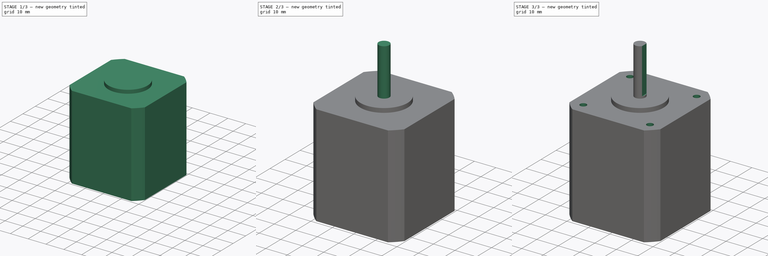
[diagram: build sequence overview — one tinted view per stage of 3, left to right]
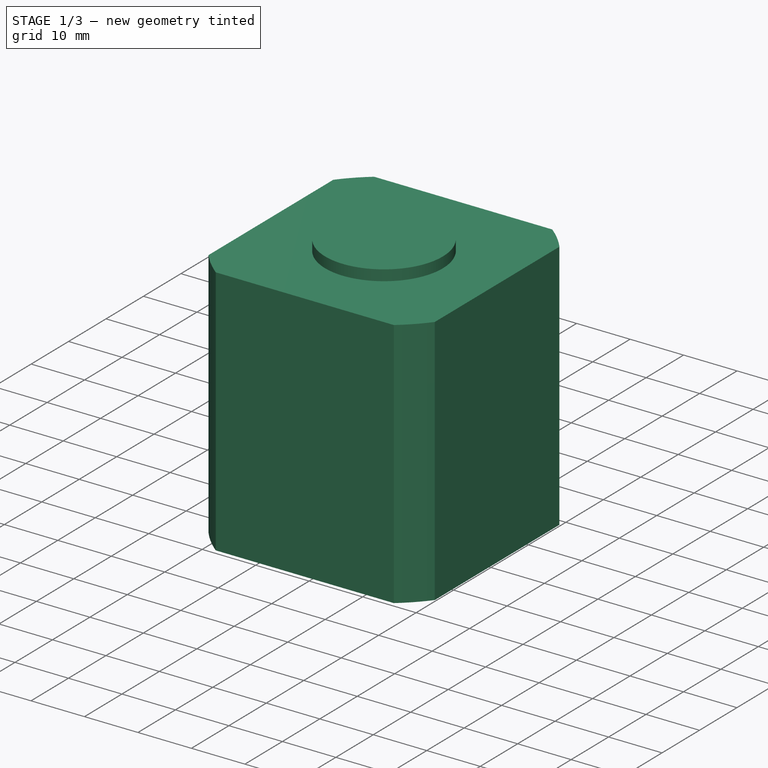
[diagram: stage 1 of 3 — iso view after this stage's code; geometry added in this stage tinted green]
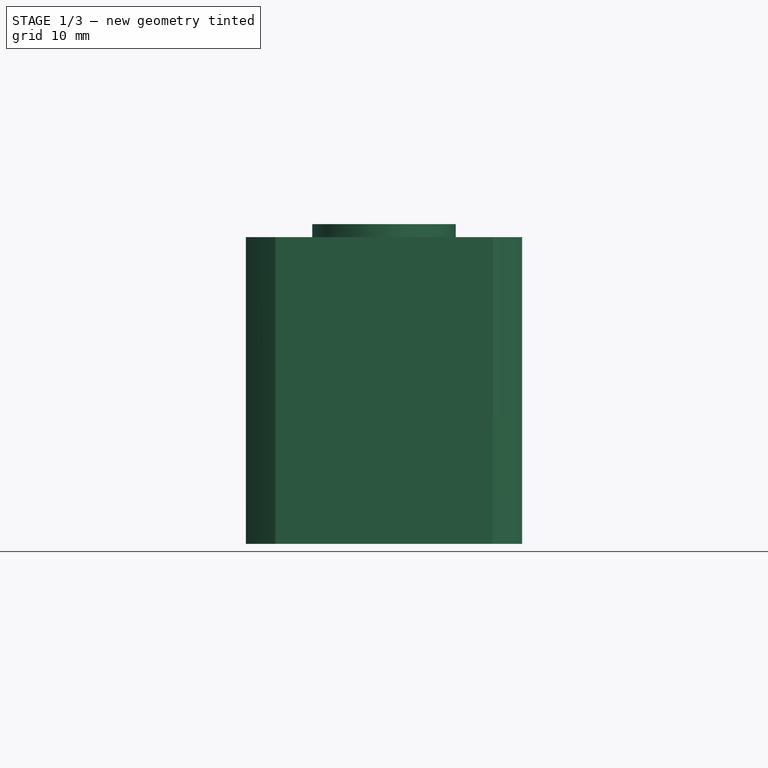
[diagram: stage 1 of 3 — front view after this stage's code; geometry added in this stage tinted green]
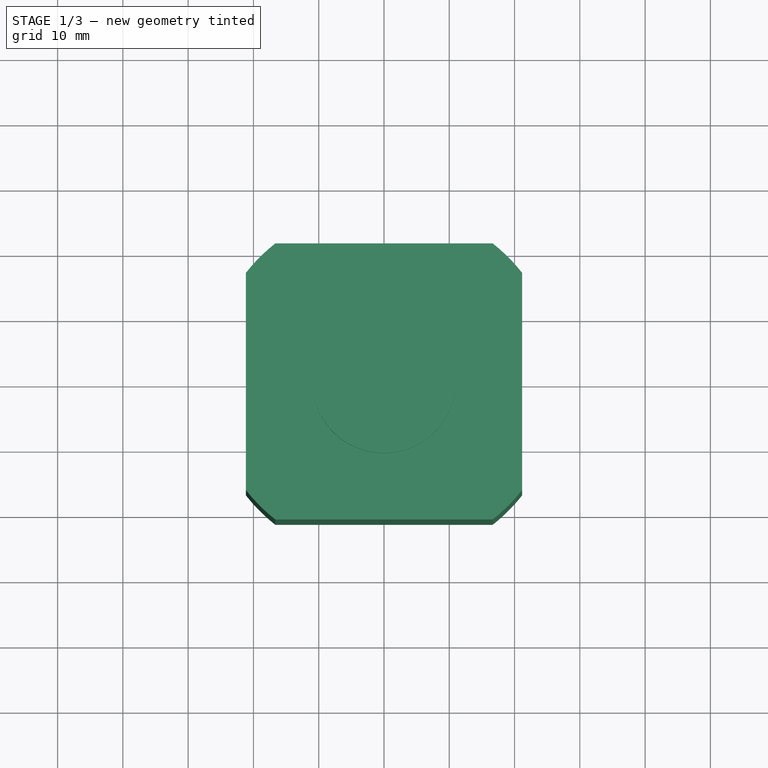
[diagram: stage 1 of 3 — top view after this stage's code; geometry added in this stage tinted green]
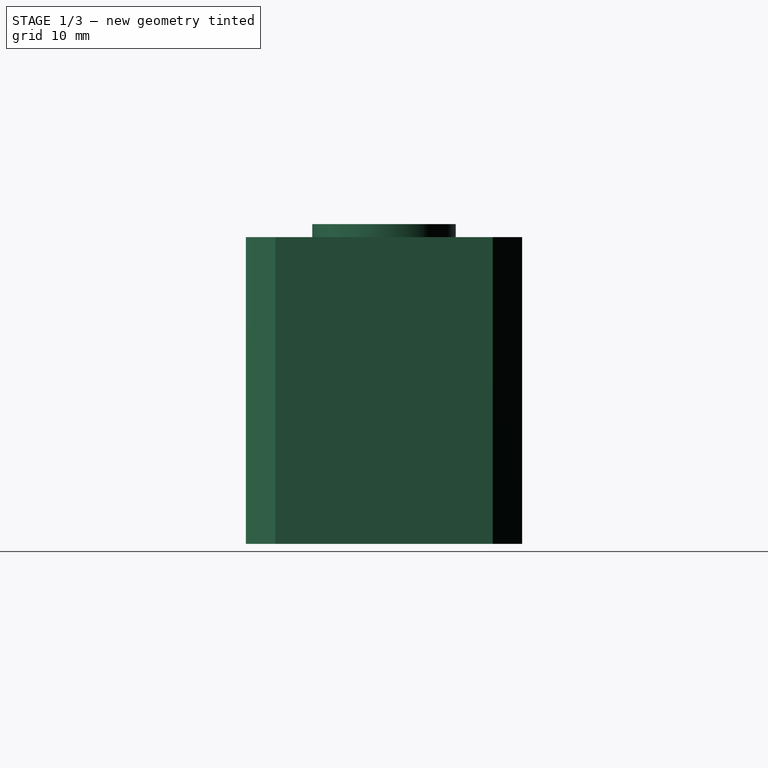
[diagram: stage 1 of 3 — right view after this stage's code; geometry added in this stage tinted green]
FCSTD DOCUMENT
Label: NEMA-17_StepperMotor
objects: Sketcher::SketchObject×5, PartDesign::Pad×3, PartDesign::Pocket×2
note: 13 computed .brp shape members not serialized (recipe doc carries the construction recipe); baked Part::Feature solids carry a one-line shape summary decoded from their .brp

FEATURE [Sketcher::SketchObject] Sketch
  sketch-geometry (8):
    g0: LineSegment StartX=-16.65 StartY=-21.15 StartZ=0 EndX=16.65 EndY=-21.15 EndZ=0
    g1: LineSegment StartX=21.15 StartY=-16.65 StartZ=0 EndX=21.15 EndY=16.65 EndZ=0
    g2: LineSegment StartX=16.65 StartY=21.15 StartZ=0 EndX=-16.65 EndY=21.15 EndZ=0
    g3: LineSegment StartX=-21.15 StartY=16.65 StartZ=0 EndX=-21.15 EndY=-16.65 EndZ=0
    g4: ArcOfCircle CenterX=0 CenterY=0 CenterZ=0 NormalX=0 NormalY=0 NormalZ=1 Radius=26.9174 StartAngle=2.2377 EndAngle=2.47468
    g5: ArcOfCircle CenterX=0 CenterY=0 CenterZ=0 NormalX=0 NormalY=0 NormalZ=1 Radius=26.9174 StartAngle=3.8085 EndAngle=4.04548
    g6: ArcOfCircle CenterX=0 CenterY=0 CenterZ=0 NormalX=0 NormalY=0 NormalZ=1 Radius=26.9174 StartAngle=5.3793 EndAngle=5.61628
    g7: ArcOfCircle CenterX=0 CenterY=0 CenterZ=0 NormalX=0 NormalY=0 NormalZ=1 Radius=26.9174 StartAngle=0.666908 EndAngle=0.903888
  constraints (29):
    c: Horizontal(g0)
    c: Horizontal(g2)
    c: Vertical(g1)
    c: Vertical(g3)
    c: PointOnObject(g0,g4)
    c: PointOnObject(g0,g4)
    c: PointOnObject(g1,g4)
    c: PointOnObject(g1,g4)
    c: Coincident(g4,g2)
    c: Coincident(g7,g2)
    c: Equal(g4,g5)
    c: Coincident(g4,g3)
    c: Coincident(g5,g3)
    c: Coincident(g4,g5)
    c: Equal(g5,g6)
    c: PointOnObject(g5,g0)
    c: PointOnObject(g6,g0)
    c: Coincident(g5,g6)
    c: Equal(g6,g7)
    c: PointOnObject(g6,g1)
    c: PointOnObject(g7,g1)
    c: Coincident(g6,g7)
    c: Equal(g3,g2)
    c: Equal(g2,g1)
    c: Equal(g1,g0)
    c: DistanceX(g3,g1) = 42.3
    c: DistanceX(g2) = -33.3
    c: DistanceY(g2) = 21.15
    c: DistanceX(g1) = 21.15
FEATURE [PartDesign::Pad] Pad
  Length = 47
  MirroredExtent = false
  Sketch = -> Sketch
FEATURE [Sketcher::SketchObject] Sketch001
  Placement = pos=(0,0,47) rot=(0,0,1;0rad)
  Support = -> Pad [Face10]
  sketch-geometry (1):
    g0: Circle CenterX=0 CenterY=0 CenterZ=0 NormalX=0 NormalY=0 NormalZ=1 Radius=11
  constraints (3):
    c: DistanceX(g0) = 0
    c: DistanceY(g0) = 0
    c: Radius(g0) = 11
FEATURE [PartDesign::Pad] Pad001
  Length = 2
  MirroredExtent = false
  Sketch = -> Sketch001
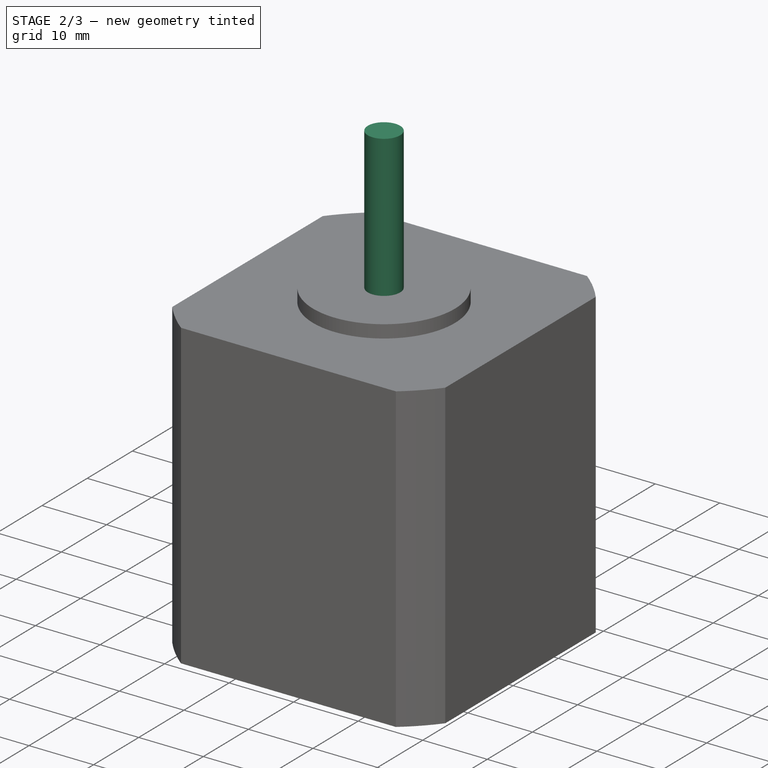
[diagram: stage 2 of 3 — iso view after this stage's code; geometry added in this stage tinted green]
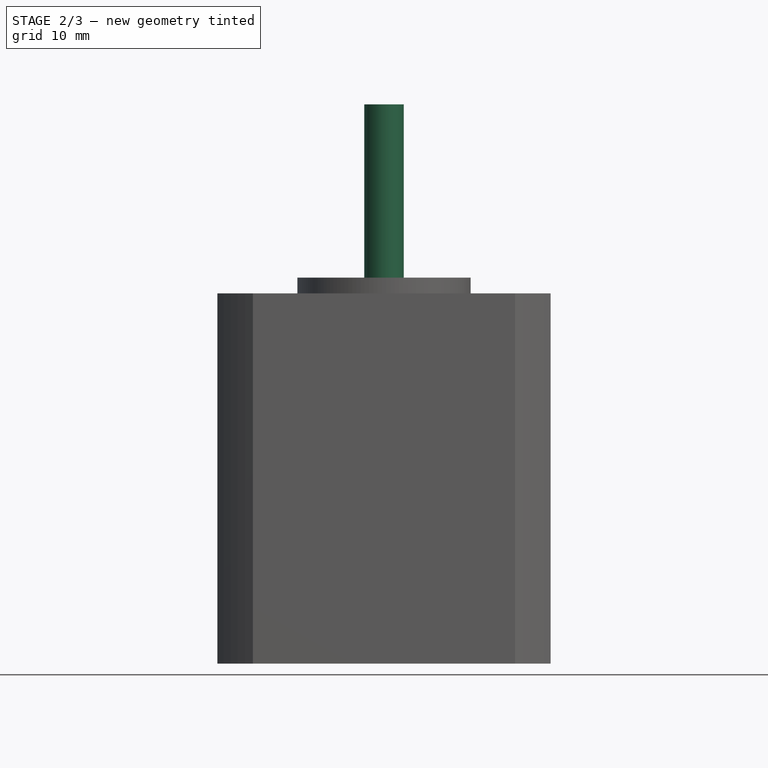
[diagram: stage 2 of 3 — front view after this stage's code; geometry added in this stage tinted green]
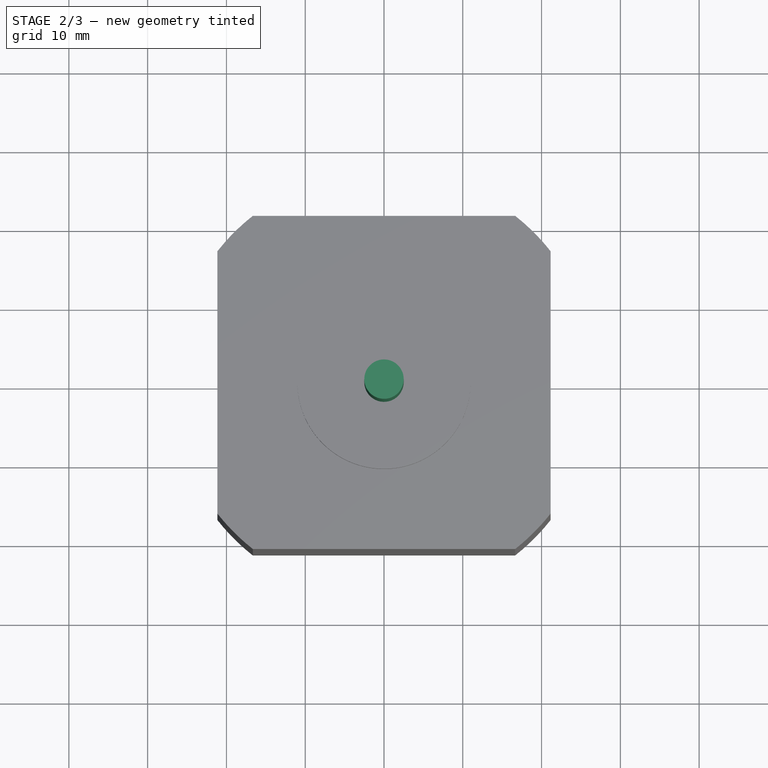
[diagram: stage 2 of 3 — top view after this stage's code; geometry added in this stage tinted green]
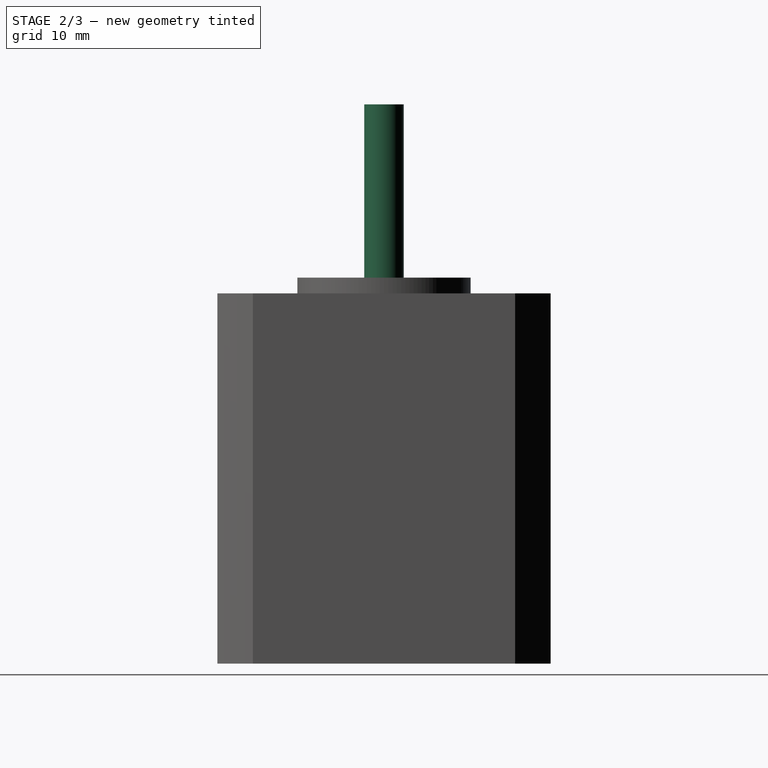
[diagram: stage 2 of 3 — right view after this stage's code; geometry added in this stage tinted green]
FEATURE [Sketcher::SketchObject] Sketch002
  Placement = pos=(0,0,49) rot=(0,0,1;0rad)
  Support = -> Pad001 [Face12]
  sketch-geometry (1):
    g0: Circle CenterX=0 CenterY=0 CenterZ=0 NormalX=0 NormalY=0 NormalZ=1 Radius=2.5
  constraints (3):
    c: DistanceX(g0) = 0
    c: DistanceY(g0) = 0
    c: Radius(g0) = 2.5
FEATURE [PartDesign::Pad] Pad002
  Length = 22
  MirroredExtent = false
  Sketch = -> Sketch002
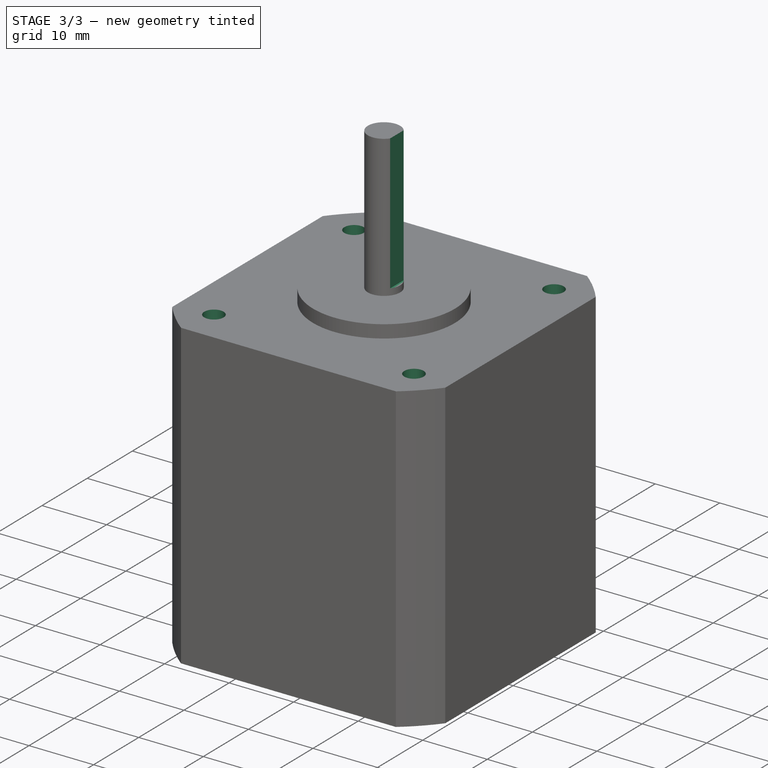
[diagram: stage 3 of 3 — iso view after this stage's code; geometry added in this stage tinted green]
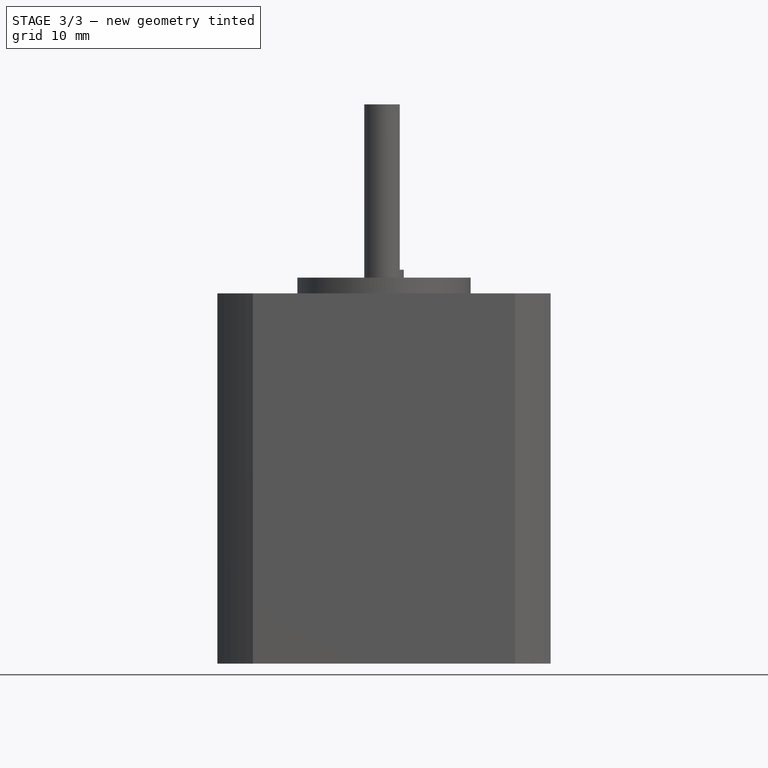
[diagram: stage 3 of 3 — front view after this stage's code; geometry added in this stage tinted green]
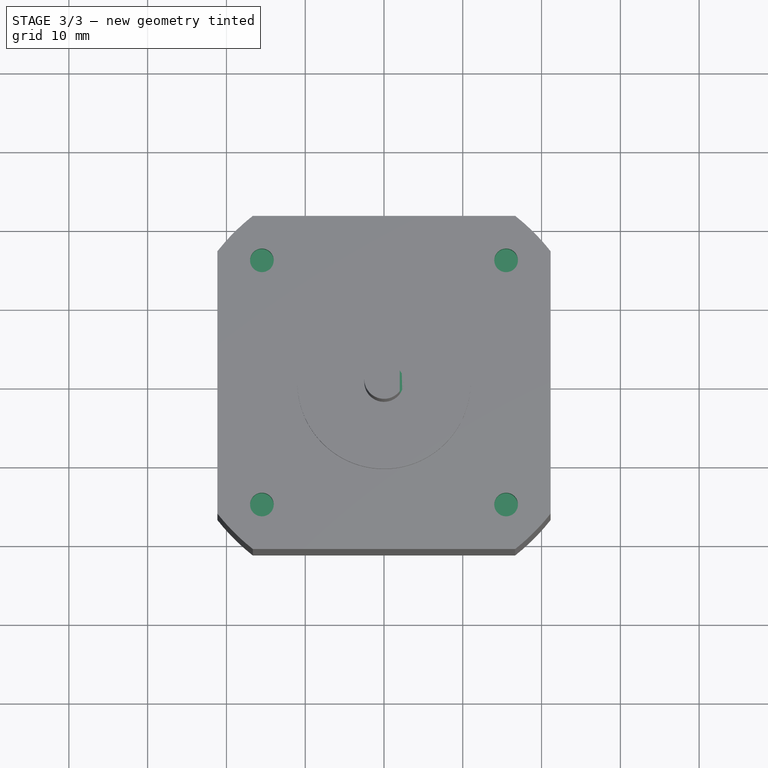
[diagram: stage 3 of 3 — top view after this stage's code; geometry added in this stage tinted green]
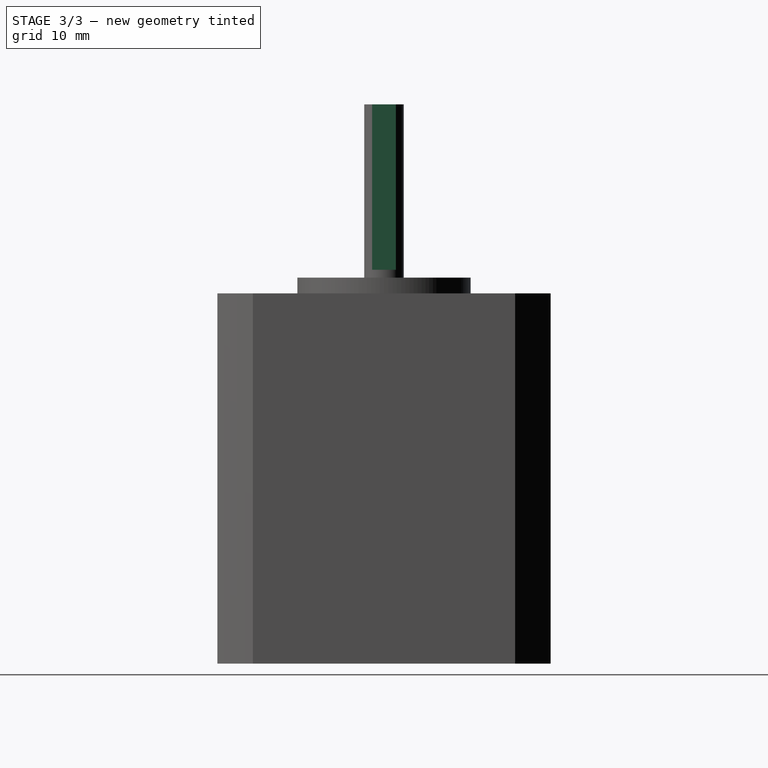
[diagram: stage 3 of 3 — right view after this stage's code; geometry added in this stage tinted green]
FEATURE [Sketcher::SketchObject] Sketch003
  Placement = pos=(0,0,71) rot=(0,0,1;0rad)
  Support = -> Pad002 [Face14]
  sketch-geometry (4):
    g0: LineSegment StartX=2 StartY=-2 StartZ=0 EndX=3 EndY=-2 EndZ=0
    g1: LineSegment StartX=3 StartY=-2 StartZ=0 EndX=3 EndY=2 EndZ=0
    g2: LineSegment StartX=3 StartY=2 StartZ=0 EndX=2 EndY=2 EndZ=0
    g3: LineSegment StartX=2 StartY=2 StartZ=0 EndX=2 EndY=-2 EndZ=0
  constraints (12):
    c: Coincident(g0,g1)
    c: Coincident(g1,g2)
    c: Coincident(g2,g3)
    c: Coincident(g3,g0)
    c: Horizontal(g0)
    c: Horizontal(g2)
    c: Vertical(g1)
    c: Vertical(g3)
    c: DistanceX(g2) = -1
    c: DistanceY(g1) = 4
    c: DistanceX(g2) = 2
    c: DistanceY(g2) = 2
FEATURE [PartDesign::Pocket] Pocket
  Length = 21
  Sketch = -> Sketch003
  Type = 0
FEATURE [Sketcher::SketchObject] Sketch004
  Placement = pos=(0,0,47) rot=(0,0,1;0rad)
  Support = -> Pocket [Face5]
  sketch-geometry (8):
    g0: LineSegment [constr] StartX=-15.5 StartY=-15.5 StartZ=0 EndX=15.5 EndY=-15.5 EndZ=0
    g1: LineSegment [constr] StartX=15.5 StartY=-15.5 StartZ=0 EndX=15.5 EndY=15.5 EndZ=0
    g2: LineSegment [constr] StartX=15.5 StartY=15.5 StartZ=0 EndX=-15.5 EndY=15.5 EndZ=0
    g3: LineSegment [constr] StartX=-15.5 StartY=15.5 StartZ=0 EndX=-15.5 EndY=-15.5 EndZ=0
    g4: Circle CenterX=-15.5 CenterY=15.5 CenterZ=0 NormalX=0 NormalY=0 NormalZ=1 Radius=1.5
    g5: Circle CenterX=15.5 CenterY=15.5 CenterZ=0 NormalX=0 NormalY=0 NormalZ=1 Radius=1.5
    g6: Circle CenterX=-15.5 CenterY=-15.5 CenterZ=0 NormalX=0 NormalY=0 NormalZ=1 Radius=1.5
    g7: Circle CenterX=15.5 CenterY=-15.5 CenterZ=0 NormalX=0 NormalY=0 NormalZ=1 Radius=1.5
  constraints (20):
    c: Coincident(g0,g1)
    c: Coincident(g1,g2)
    c: Coincident(g2,g3)
    c: Coincident(g3,g0)
    c: Horizontal(g0)
    c: Horizontal(g2)
    c: Vertical(g1)
    c: Vertical(g3)
    c: Equal(g3,g2)
    c: DistanceX(g2) = -31
    c: DistanceX(g1) = 15.5
    c: DistanceY(g1) = 15.5
    c: Coincident(g4,g2)
    c: Coincident(g5,g1)
    c: Coincident(g6,g0)
    c: Coincident(g7,g0)
    c: Equal(g6,g7)
    c: Equal(g7,g5)
    c: Equal(g5,g4)
    c: Radius(g5) = 1.5
FEATURE [PartDesign::Pocket] Pocket001
  Length = 4.5
  Sketch = -> Sketch004
  Type = 0
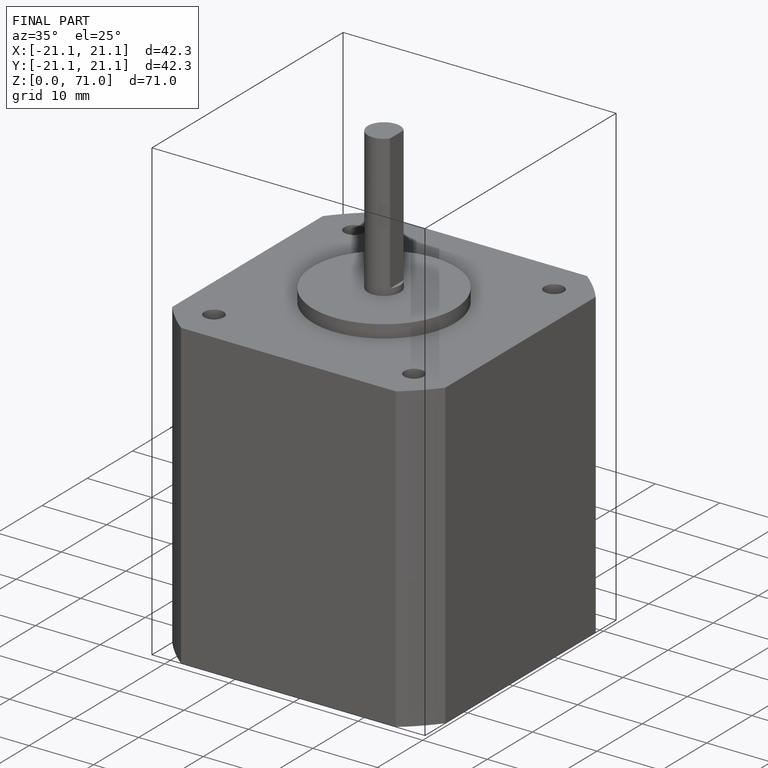
[diagram: finished part — iso view with bounding-box wireframe]
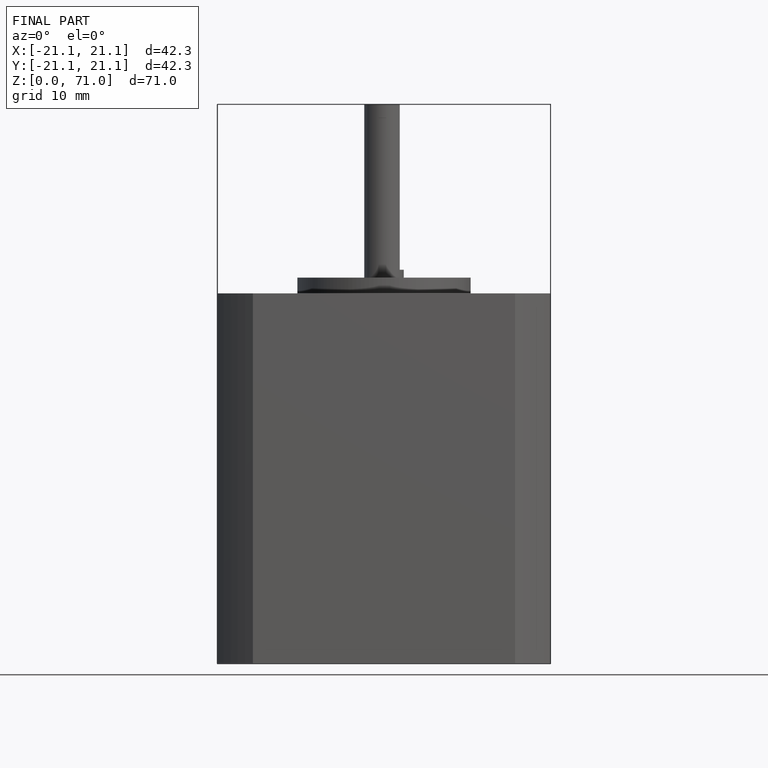
[diagram: finished part — front view with bounding-box wireframe]
